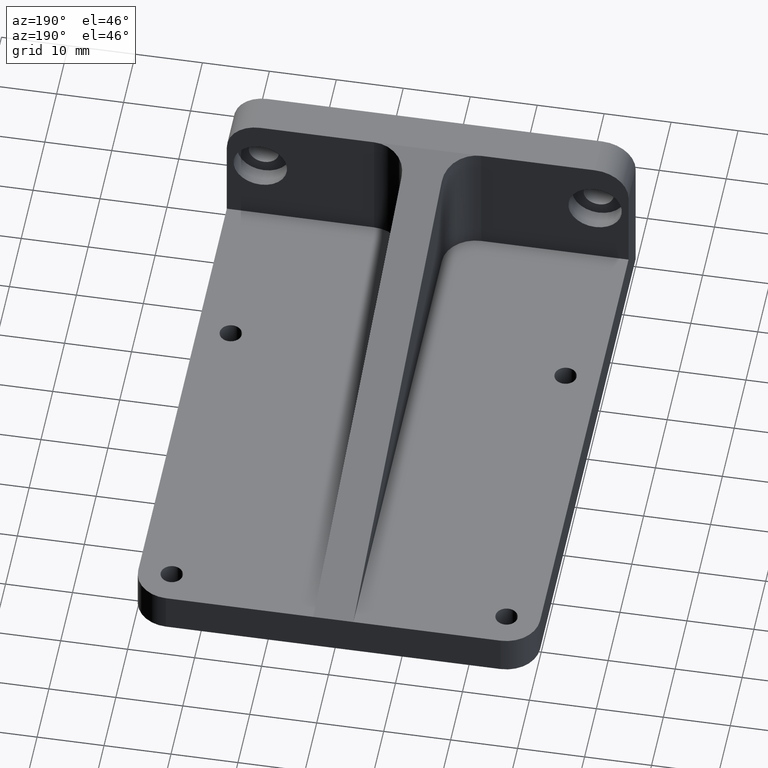
[diagram: clean part render]
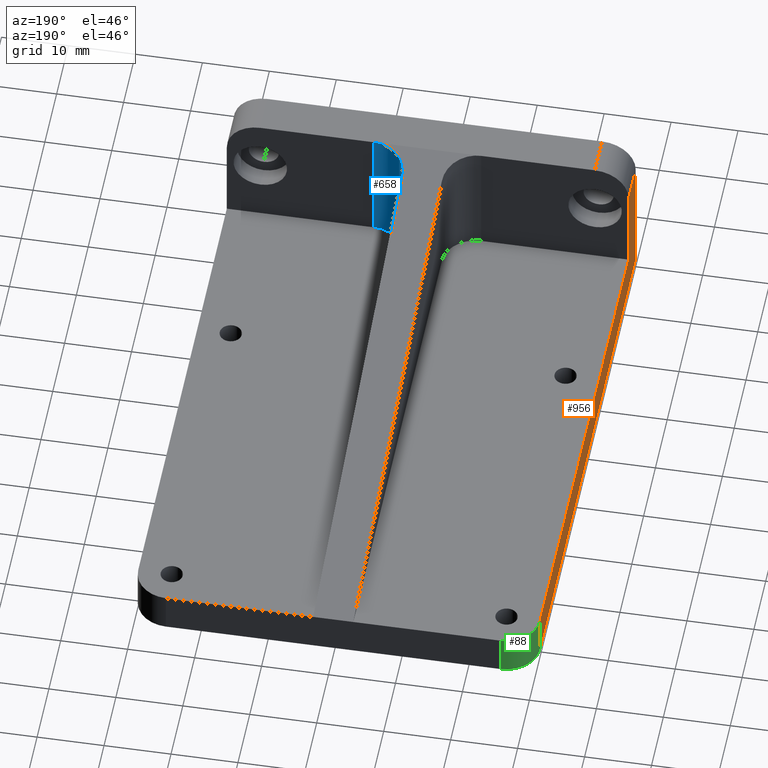
[diagram: same view with three faces highlighted in distinct colors, each labeled with its STEP entity id]
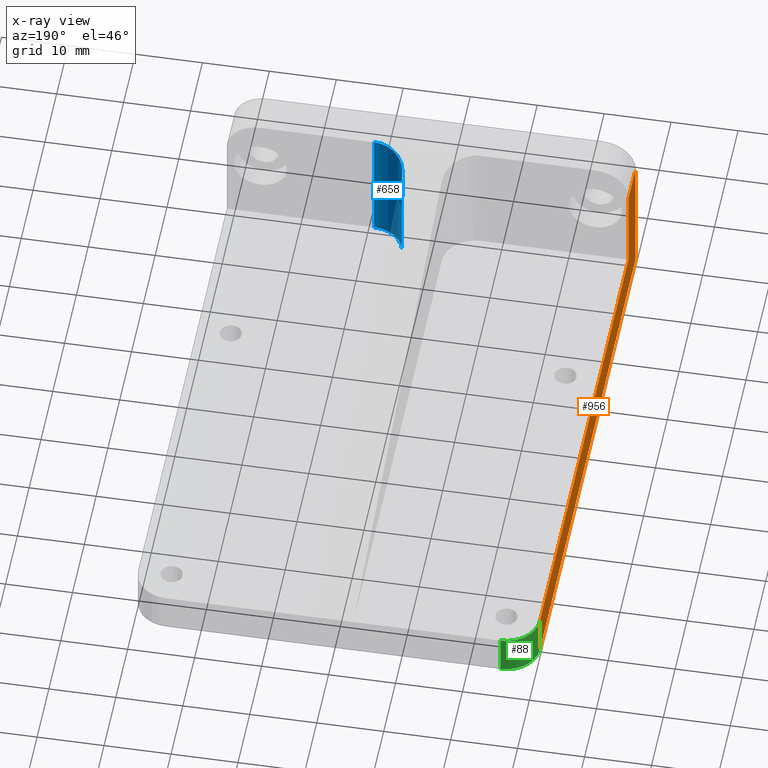
[diagram: x-ray of the same camera — body ghosted, the three highlighted faces saturated]
A machine part, auxiliary view with three faces highlighted in distinct colors.
The next image is the same camera in x-ray (body ghosted, the three faces saturated) — at least one of them is partly hidden behind the body in this view.
Their STEP definitions:

[orange] entity #956 — the highlighted planar face has unit normal (-1, 0, 0).
#6 = VERTEX_POINT ( 'NONE', #70 ) ;
#18 = EDGE_CURVE ( 'NONE', #6, #89, #355, .T. ) ;
#28 = AXIS2_PLACEMENT_3D ( 'NONE', #528, #1091, #724 ) ;
#70 = CARTESIAN_POINT ( 'NONE',  ( -30.00000000000000000, 5.999999999999996447, 6.000000000000005329 ) ) ;
#86 = EDGE_CURVE ( 'NONE', #6, #412, #1060, .T. ) ;
#89 = VERTEX_POINT ( 'NONE', #684 ) ;
#108 = DIRECTION ( 'NONE',  ( -0.0000000000000000000, 1.224646799147353207E-16, -1.000000000000000000 ) ) ;
#113 = DIRECTION ( 'NONE',  ( -0.0000000000000000000, 0.0000000000000000000, -1.000000000000000000 ) ) ;
#124 = CARTESIAN_POINT ( 'NONE',  ( -30.00000000000000000, 5.999999999999996447, 19.00000000000000355 ) ) ;
#139 = EDGE_CURVE ( 'NONE', #89, #1119, #505, .T. ) ;
#145 = CARTESIAN_POINT ( 'NONE',  ( -30.00000000000000000, -2.326828918379970970E-15, 19.00000000000000000 ) ) ;
#192 = DIRECTION ( 'NONE',  ( -0.0000000000000000000, -0.0000000000000000000, 1.000000000000000000 ) ) ;
#220 = CARTESIAN_POINT ( 'NONE',  ( -30.00000000000000000, 0.0000000000000000000, 0.0000000000000000000 ) ) ;
#236 = CARTESIAN_POINT ( 'NONE',  ( -30.00000000000000000, 80.99999999999998579, 0.0000000000000000000 ) ) ;
#254 = LINE ( 'NONE', #1000, #427 ) ;
#279 = ORIENTED_EDGE ( 'NONE', *, *, #837, .F. ) ;
#299 = DIRECTION ( 'NONE',  ( 0.0000000000000000000, 1.000000000000000000, 0.0000000000000000000 ) ) ;
#300 = LINE ( 'NONE', #220, #776 ) ;
#352 = ORIENTED_EDGE ( 'NONE', *, *, #86, .F. ) ;
#355 = LINE ( 'NONE', #909, #830 ) ;
#399 = LINE ( 'NONE', #1155, #851 ) ;
#412 = VERTEX_POINT ( 'NONE', #124 ) ;
#426 = VERTEX_POINT ( 'NONE', #145 ) ;
#427 = VECTOR ( 'NONE', #429, 1000.000000000000000 ) ;
#429 = DIRECTION ( 'NONE',  ( -0.0000000000000000000, 1.000000000000000000, -0.0000000000000000000 ) ) ;
#455 = FACE_OUTER_BOUND ( 'NONE', #920, .T. ) ;
#505 = LINE ( 'NONE', #963, #1131 ) ;
#528 = CARTESIAN_POINT ( 'NONE',  ( -30.00000000000000000, 0.0000000000000000000, 0.0000000000000000000 ) ) ;
#674 = CARTESIAN_POINT ( 'NONE',  ( -30.00000000000000000, 0.0000000000000000000, 0.0000000000000000000 ) ) ;
#684 = CARTESIAN_POINT ( 'NONE',  ( -30.00000000000000000, 80.99999999999998579, 6.000000000000005329 ) ) ;
#707 = ORIENTED_EDGE ( 'NONE', *, *, #18, .T. ) ;
#710 = VECTOR ( 'NONE', #192, 1000.000000000000000 ) ;
#724 = DIRECTION ( 'NONE',  ( 0.0000000000000000000, 0.0000000000000000000, 1.000000000000000000 ) ) ;
#763 = CARTESIAN_POINT ( 'NONE',  ( -30.00000000000000000, 5.999999999999996447, -84.43340571124680594 ) ) ;
#776 = VECTOR ( 'NONE', #108, 1000.000000000000000 ) ;
#805 = ORIENTED_EDGE ( 'NONE', *, *, #948, .F. ) ;
#811 = VERTEX_POINT ( 'NONE', #674 ) ;
#830 = VECTOR ( 'NONE', #838, 1000.000000000000000 ) ;
#837 = EDGE_CURVE ( 'NONE', #811, #1119, #399, .T. ) ;
#838 = DIRECTION ( 'NONE',  ( 0.0000000000000000000, 1.000000000000000000, -0.0000000000000000000 ) ) ;
#851 = VECTOR ( 'NONE', #299, 1000.000000000000000 ) ;
#895 = PLANE ( 'NONE',  #28 ) ;
#909 = CARTESIAN_POINT ( 'NONE',  ( -30.00000000000000000, 5.999999999999996447, 6.000000000000005329 ) ) ;
#920 = EDGE_LOOP ( 'NONE', ( #805, #1226, #352, #707, #1079, #279 ) ) ;
#948 = EDGE_CURVE ( 'NONE', #426, #811, #300, .T. ) ;
#956 = ADVANCED_FACE ( 'NONE', ( #455 ), #895, .T. ) ;
#961 = EDGE_CURVE ( 'NONE', #426, #412, #254, .T. ) ;
#963 = CARTESIAN_POINT ( 'NONE',  ( -30.00000000000000000, 80.99999999999998579, 0.0000000000000000000 ) ) ;
#1000 = CARTESIAN_POINT ( 'NONE',  ( -30.00000000000000000, 5.999999999999996447, 19.00000000000000000 ) ) ;
#1060 = LINE ( 'NONE', #763, #710 ) ;
#1079 = ORIENTED_EDGE ( 'NONE', *, *, #139, .T. ) ;
#1091 = DIRECTION ( 'NONE',  ( -1.000000000000000000, 0.0000000000000000000, 0.0000000000000000000 ) ) ;
#1119 = VERTEX_POINT ( 'NONE', #236 ) ;
#1131 = VECTOR ( 'NONE', #113, 1000.000000000000000 ) ;
#1155 = CARTESIAN_POINT ( 'NONE',  ( -30.00000000000000000, 0.0000000000000000000, 0.0000000000000000000 ) ) ;
#1226 = ORIENTED_EDGE ( 'NONE', *, *, #961, .T. ) ;

[blue] entity #658 — the highlighted cylindrical surface (edge-blend (fillet) strip) has radius 5 mm, axis along (0, 0, -1).
#24 = AXIS2_PLACEMENT_3D ( 'NONE', #197, #954, #499 ) ;
#72 = DIRECTION ( 'NONE',  ( -0.0000000000000000000, -0.0000000000000000000, -1.000000000000000000 ) ) ;
#149 = EDGE_CURVE ( 'NONE', #762, #560, #807, .T. ) ;
#162 = CARTESIAN_POINT ( 'NONE',  ( 3.000000000000010658, 10.99999999999996803, 22.87500000000000711 ) ) ;
#188 = CARTESIAN_POINT ( 'NONE',  ( 8.000000000000007105, 5.999999999999997335, 6.000000000000005329 ) ) ;
#197 = CARTESIAN_POINT ( 'NONE',  ( 8.000000000000007105, 10.99999999999999645, 6.000000000000005329 ) ) ;
#264 = CARTESIAN_POINT ( 'NONE',  ( 3.000000000000008882, 10.99999999999999645, 6.000000000000005329 ) ) ;
#332 = VECTOR ( 'NONE', #72, 1000.000000000000000 ) ;
#349 = LINE ( 'NONE', #264, #332 ) ;
#484 = FACE_OUTER_BOUND ( 'NONE', #1122, .T. ) ;
#499 = DIRECTION ( 'NONE',  ( 1.000000000000000000, 0.0000000000000000000, 0.0000000000000000000 ) ) ;
#560 = VERTEX_POINT ( 'NONE', #188 ) ;
#575 = ORIENTED_EDGE ( 'NONE', *, *, #628, .F. ) ;
#576 = CYLINDRICAL_SURFACE ( 'NONE', #808, 5.000000000000000000 ) ;
#628 = EDGE_CURVE ( 'NONE', #637, #762, #349, .T. ) ;
#637 = VERTEX_POINT ( 'NONE', #162 ) ;
#658 = ADVANCED_FACE ( 'NONE', ( #484 ), #576, .F. ) ;
#666 =( BOUNDED_CURVE ( )  B_SPLINE_CURVE ( 3, ( #1042, #952, #1021, #1027 ),
 .UNSPECIFIED., .F., .T. ) 
 B_SPLINE_CURVE_WITH_KNOTS ( ( 4, 4 ),
 ( 3.141592653589793116, 4.712388980384684345 ),
 .UNSPECIFIED. ) 
 CURVE ( )  GEOMETRIC_REPRESENTATION_ITEM ( )  RATIONAL_B_SPLINE_CURVE ( ( 1.000000000000000000, 0.8047378541243662697, 0.8047378541243662697, 1.000000000000000000 ) ) 
 REPRESENTATION_ITEM ( '' )  );
#730 = DIRECTION ( 'NONE',  ( 0.0000000000000000000, 0.0000000000000000000, 1.000000000000000000 ) ) ;
#762 = VERTEX_POINT ( 'NONE', #1057 ) ;
#807 = CIRCLE ( 'NONE', #24, 5.000000000000000888 ) ;
#808 = AXIS2_PLACEMENT_3D ( 'NONE', #937, #1123, #1019 ) ;
#824 = CARTESIAN_POINT ( 'NONE',  ( 8.000000000000007105, 5.999999999999997335, 23.99999999999999289 ) ) ;
#827 = ORIENTED_EDGE ( 'NONE', *, *, #1231, .F. ) ;
#836 = ORIENTED_EDGE ( 'NONE', *, *, #863, .F. ) ;
#853 = VECTOR ( 'NONE', #730, 1000.000000000000000 ) ;
#863 = EDGE_CURVE ( 'NONE', #974, #637, #666, .T. ) ;
#937 = CARTESIAN_POINT ( 'NONE',  ( 8.000000000000007105, 10.99999999999999645, -84.43340571124680594 ) ) ;
#952 = CARTESIAN_POINT ( 'NONE',  ( 5.071067811865495045, 5.999999999999993783, 24.00000000000000711 ) ) ;
#954 = DIRECTION ( 'NONE',  ( 0.0000000000000000000, 0.0000000000000000000, 1.000000000000000000 ) ) ;
#974 = VERTEX_POINT ( 'NONE', #1075 ) ;
#1019 = DIRECTION ( 'NONE',  ( -1.000000000000000000, 0.0000000000000000000, 0.0000000000000000000 ) ) ;
#1021 = CARTESIAN_POINT ( 'NONE',  ( 3.000000000000024425, 8.071067811865454189, 23.53400974233028364 ) ) ;
#1027 = CARTESIAN_POINT ( 'NONE',  ( 3.000000000000010658, 10.99999999999996803, 22.87500000000000711 ) ) ;
#1042 = CARTESIAN_POINT ( 'NONE',  ( 8.000000000000007105, 5.999999999999997335, 24.00000000000000000 ) ) ;
#1057 = CARTESIAN_POINT ( 'NONE',  ( 3.000000000000008882, 10.99999999999999645, 6.000000000000005329 ) ) ;
#1075 = CARTESIAN_POINT ( 'NONE',  ( 8.000000000000007105, 5.999999999999997335, 24.00000000000000000 ) ) ;
#1098 = LINE ( 'NONE', #824, #853 ) ;
#1122 = EDGE_LOOP ( 'NONE', ( #1182, #575, #836, #827 ) ) ;
#1123 = DIRECTION ( 'NONE',  ( 0.0000000000000000000, 0.0000000000000000000, -1.000000000000000000 ) ) ;
#1182 = ORIENTED_EDGE ( 'NONE', *, *, #149, .F. ) ;
#1231 = EDGE_CURVE ( 'NONE', #560, #974, #1098, .T. ) ;

[green] entity #88 — the highlighted cylindrical surface (edge-blend (fillet) strip) has radius 5 mm, axis along (0, 0, -1).
#23 = ORIENTED_EDGE ( 'NONE', *, *, #934, .F. ) ;
#88 = ADVANCED_FACE ( 'NONE', ( #293 ), #865, .T. ) ;
#89 = VERTEX_POINT ( 'NONE', #684 ) ;
#113 = DIRECTION ( 'NONE',  ( -0.0000000000000000000, 0.0000000000000000000, -1.000000000000000000 ) ) ;
#127 = AXIS2_PLACEMENT_3D ( 'NONE', #942, #265, #653 ) ;
#139 = EDGE_CURVE ( 'NONE', #89, #1119, #505, .T. ) ;
#186 = VERTEX_POINT ( 'NONE', #210 ) ;
#210 = CARTESIAN_POINT ( 'NONE',  ( -24.99999999999999289, 86.00000000000000000, 0.0000000000000000000 ) ) ;
#236 = CARTESIAN_POINT ( 'NONE',  ( -30.00000000000000000, 80.99999999999998579, 0.0000000000000000000 ) ) ;
#240 = DIRECTION ( 'NONE',  ( 0.0000000000000000000, 0.0000000000000000000, 1.000000000000000000 ) ) ;
#265 = DIRECTION ( 'NONE',  ( -0.0000000000000000000, -0.0000000000000000000, -1.000000000000000000 ) ) ;
#287 = DIRECTION ( 'NONE',  ( -1.000000000000000000, 0.0000000000000000000, 0.0000000000000000000 ) ) ;
#293 = FACE_OUTER_BOUND ( 'NONE', #844, .T. ) ;
#354 = AXIS2_PLACEMENT_3D ( 'NONE', #855, #585, #287 ) ;
#364 = ORIENTED_EDGE ( 'NONE', *, *, #445, .F. ) ;
#445 = EDGE_CURVE ( 'NONE', #832, #89, #1050, .T. ) ;
#505 = LINE ( 'NONE', #963, #1131 ) ;
#585 = DIRECTION ( 'NONE',  ( 0.0000000000000000000, 0.0000000000000000000, -1.000000000000000000 ) ) ;
#596 = CARTESIAN_POINT ( 'NONE',  ( -24.99999999999999289, 86.00000000000000000, 6.000000000000005329 ) ) ;
#605 = LINE ( 'NONE', #1093, #735 ) ;
#614 = DIRECTION ( 'NONE',  ( 1.000000000000000000, 0.0000000000000000000, 0.0000000000000000000 ) ) ;
#618 = DIRECTION ( 'NONE',  ( 0.0000000000000000000, 0.0000000000000000000, 1.000000000000000000 ) ) ;
#640 = ORIENTED_EDGE ( 'NONE', *, *, #139, .F. ) ;
#653 = DIRECTION ( 'NONE',  ( 1.000000000000000000, 0.0000000000000000000, 0.0000000000000000000 ) ) ;
#682 = CIRCLE ( 'NONE', #127, 5.000000000000000888 ) ;
#684 = CARTESIAN_POINT ( 'NONE',  ( -30.00000000000000000, 80.99999999999998579, 6.000000000000005329 ) ) ;
#709 = CARTESIAN_POINT ( 'NONE',  ( -24.99999999999999289, 80.99999999999998579, 6.000000000000000000 ) ) ;
#734 = AXIS2_PLACEMENT_3D ( 'NONE', #709, #618, #614 ) ;
#735 = VECTOR ( 'NONE', #240, 1000.000000000000000 ) ;
#832 = VERTEX_POINT ( 'NONE', #596 ) ;
#844 = EDGE_LOOP ( 'NONE', ( #23, #640, #364, #985 ) ) ;
#855 = CARTESIAN_POINT ( 'NONE',  ( -24.99999999999999289, 80.99999999999998579, 0.0000000000000000000 ) ) ;
#865 = CYLINDRICAL_SURFACE ( 'NONE', #354, 5.000000000000000888 ) ;
#915 = EDGE_CURVE ( 'NONE', #186, #832, #605, .T. ) ;
#934 = EDGE_CURVE ( 'NONE', #1119, #186, #682, .T. ) ;
#942 = CARTESIAN_POINT ( 'NONE',  ( -24.99999999999999289, 80.99999999999998579, 0.0000000000000000000 ) ) ;
#963 = CARTESIAN_POINT ( 'NONE',  ( -30.00000000000000000, 80.99999999999998579, 0.0000000000000000000 ) ) ;
#985 = ORIENTED_EDGE ( 'NONE', *, *, #915, .F. ) ;
#1050 = CIRCLE ( 'NONE', #734, 5.000000000000000888 ) ;
#1093 = CARTESIAN_POINT ( 'NONE',  ( -24.99999999999999289, 86.00000000000000000, 6.000000000000000000 ) ) ;
#1119 = VERTEX_POINT ( 'NONE', #236 ) ;
#1131 = VECTOR ( 'NONE', #113, 1000.000000000000000 ) ;